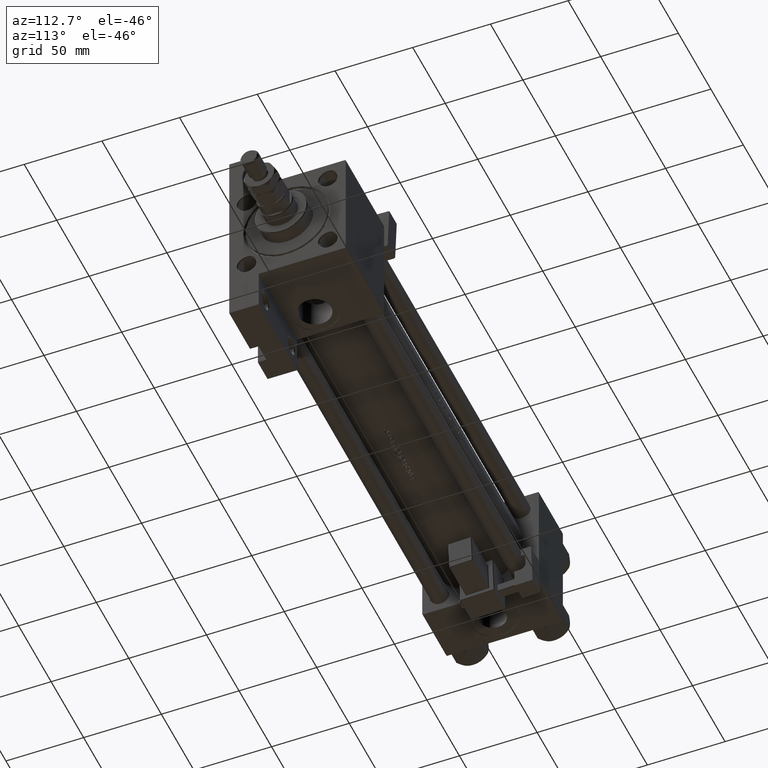
[diagram: clean part render]
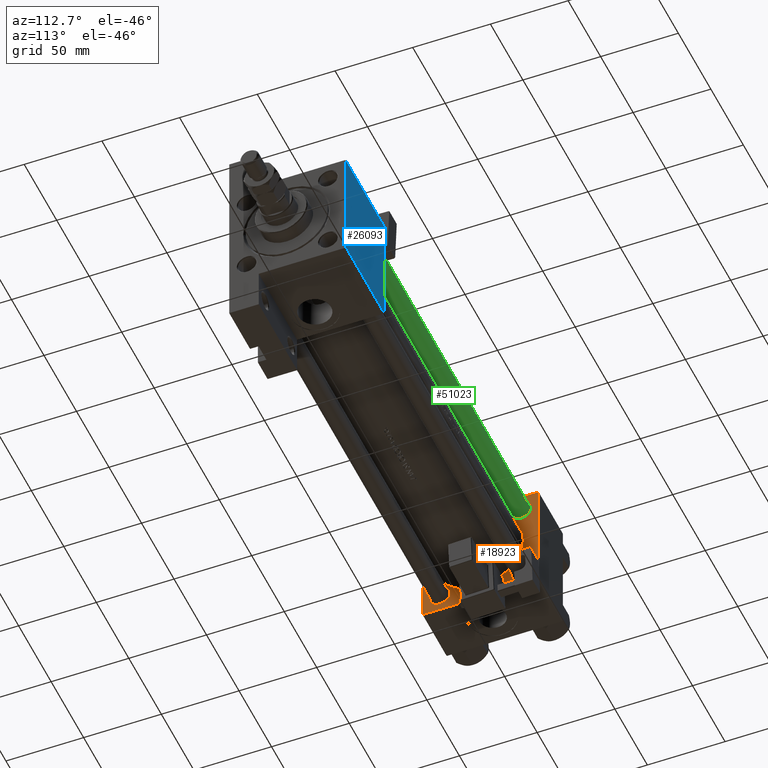
[diagram: same view with three faces highlighted in distinct colors, each labeled with its STEP entity id]
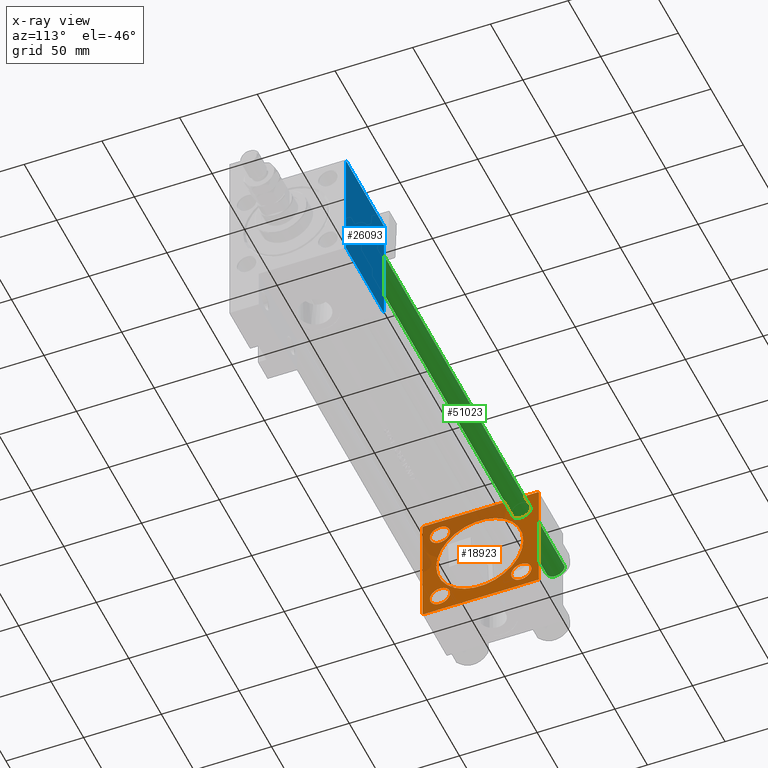
[diagram: x-ray of the same camera — body ghosted, the three highlighted faces saturated]
A machine part, auxiliary view with three faces highlighted in distinct colors.
The next image is the same camera in x-ray (body ghosted, the three faces saturated) — at least one of them is partly hidden behind the body in this view.
Their STEP definitions:

[orange] entity #18923 — the highlighted planar face has unit normal (-1, 0, -0).
#39 = CARTESIAN_POINT ( 'NONE',  ( 37.00000000000000711, 6.123233995736772199E-17, -0.5000000000000004441 ) ) ;
#333 = VERTEX_POINT ( 'NONE', #7022 ) ;
#899 = ORIENTED_EDGE ( 'NONE', *, *, #29052, .T. ) ;
#1171 = EDGE_CURVE ( 'NONE', #26563, #38338, #3139, .T. ) ;
#1453 = VERTEX_POINT ( 'NONE', #18425 ) ;
#2120 = CIRCLE ( 'NONE', #9616, 6.500000000000002665 ) ;
#2301 = DIRECTION ( 'NONE',  ( 0.000000000000000000, -1.000000000000000000, -9.251858538542971581E-17 ) ) ;
#3049 = FACE_BOUND ( 'NONE', #30886, .T. ) ;
#3139 = LINE ( 'NONE', #6781, #6244 ) ;
#3542 = ORIENTED_EDGE ( 'NONE', *, *, #24766, .T. ) ;
#3574 = CARTESIAN_POINT ( 'NONE',  ( 37.00000000000000000, -37.50000000000000000, -37.00000000000003553 ) ) ;
#3919 = VERTEX_POINT ( 'NONE', #23829 ) ;
#4869 = DIRECTION ( 'NONE',  ( 0.000000000000000000, 0.000000000000000000, 1.000000000000000000 ) ) ;
#5374 = CARTESIAN_POINT ( 'NONE',  ( 37.00000000000000000, -26.14999999999999147, -26.15000000000000924 ) ) ;
#5993 = EDGE_CURVE ( 'NONE', #50943, #28813, #36155, .T. ) ;
#6076 = LINE ( 'NONE', #18513, #31182 ) ;
#6078 = VECTOR ( 'NONE', #16163, 1000.000000000000000 ) ;
#6244 = VECTOR ( 'NONE', #43394, 1000.000000000000114 ) ;
#6781 = CARTESIAN_POINT ( 'NONE',  ( 37.00000000000000000, -37.50000000000000711, 36.99999999999999289 ) ) ;
#6968 = VERTEX_POINT ( 'NONE', #14619 ) ;
#7022 = CARTESIAN_POINT ( 'NONE',  ( 37.00000000000000000, -26.14999999999999147, 32.64999999999996305 ) ) ;
#7024 = ORIENTED_EDGE ( 'NONE', *, *, #30095, .T. ) ;
#7077 = ORIENTED_EDGE ( 'NONE', *, *, #5993, .T. ) ;
#7383 = CARTESIAN_POINT ( 'NONE',  ( 37.00000000000000000, -37.00000000000002132, -37.50000000000000711 ) ) ;
#7732 = CARTESIAN_POINT ( 'NONE',  ( 37.00000000000000000, -26.14999999999999147, -26.15000000000000924 ) ) ;
#8100 = DIRECTION ( 'NONE',  ( 0.000000000000000000, 0.000000000000000000, 1.000000000000000000 ) ) ;
#8101 = EDGE_CURVE ( 'NONE', #26979, #1453, #21442, .T. ) ;
#8411 = ORIENTED_EDGE ( 'NONE', *, *, #49796, .T. ) ;
#9340 = CARTESIAN_POINT ( 'NONE',  ( 37.00000000000000000, -37.50000000000000711, 36.99999999999999289 ) ) ;
#9510 = EDGE_CURVE ( 'NONE', #26969, #34592, #29667, .T. ) ;
#9584 = DIRECTION ( 'NONE',  ( -1.000000000000000000, 0.000000000000000000, -0.000000000000000000 ) ) ;
#9616 = AXIS2_PLACEMENT_3D ( 'NONE', #41017, #9584, #37646 ) ;
#9723 = EDGE_LOOP ( 'NONE', ( #7077, #18833 ) ) ;
#9776 = ORIENTED_EDGE ( 'NONE', *, *, #19460, .T. ) ;
#9839 = CIRCLE ( 'NONE', #33896, 6.499999999999953815 ) ;
#9944 = CIRCLE ( 'NONE', #50580, 28.00000000000000000 ) ;
#10334 = FACE_BOUND ( 'NONE', #9723, .T. ) ;
#10570 = CARTESIAN_POINT ( 'NONE',  ( 37.00000000000000000, -37.00000000000000711, 37.49999999999999289 ) ) ;
#10588 = FACE_OUTER_BOUND ( 'NONE', #16124, .T. ) ;
#11095 = DIRECTION ( 'NONE',  ( -1.000000000000000000, 0.000000000000000000, -0.000000000000000000 ) ) ;
#11825 = EDGE_CURVE ( 'NONE', #333, #41876, #45661, .T. ) ;
#12238 = EDGE_LOOP ( 'NONE', ( #50791, #36782 ) ) ;
#12523 = CARTESIAN_POINT ( 'NONE',  ( 37.00000000000000000, 37.49999999999999289, 37.50000000000000000 ) ) ;
#13206 = VERTEX_POINT ( 'NONE', #50297 ) ;
#13342 = CARTESIAN_POINT ( 'NONE',  ( 37.00000000000000000, -26.14999999999999147, 26.15000000000000924 ) ) ;
#13420 = DIRECTION ( 'NONE',  ( -1.000000000000000000, 0.000000000000000000, -0.000000000000000000 ) ) ;
#13660 = DIRECTION ( 'NONE',  ( 0.000000000000000000, 0.000000000000000000, 1.000000000000000000 ) ) ;
#14619 = CARTESIAN_POINT ( 'NONE',  ( 37.00000000000000000, 36.99999999999999289, 37.50000000000000000 ) ) ;
#14737 = CARTESIAN_POINT ( 'NONE',  ( 37.00000000000000000, 0.000000000000000000, 0.000000000000000000 ) ) ;
#14906 = DIRECTION ( 'NONE',  ( 0.000000000000000000, 0.000000000000000000, 1.000000000000000000 ) ) ;
#14932 = AXIS2_PLACEMENT_3D ( 'NONE', #13342, #21399, #37249 ) ;
#15000 = FACE_BOUND ( 'NONE', #12238, .T. ) ;
#15495 = ORIENTED_EDGE ( 'NONE', *, *, #9510, .T. ) ;
#15506 = VECTOR ( 'NONE', #29500, 1000.000000000000114 ) ;
#15634 = VERTEX_POINT ( 'NONE', #32515 ) ;
#15698 = LINE ( 'NONE', #7383, #25706 ) ;
#15798 = ORIENTED_EDGE ( 'NONE', *, *, #8101, .F. ) ;
#16124 = EDGE_LOOP ( 'NONE', ( #15798, #44508, #45728, #9776, #3542, #36397, #8411, #31282 ) ) ;
#16163 = DIRECTION ( 'NONE',  ( 0.000000000000000000, 0.000000000000000000, -1.000000000000000000 ) ) ;
#16478 = VECTOR ( 'NONE', #2301, 1000.000000000000000 ) ;
#16980 = VERTEX_POINT ( 'NONE', #27920 ) ;
#17036 = LINE ( 'NONE', #37038, #15506 ) ;
#17314 = CARTESIAN_POINT ( 'NONE',  ( 37.00000000000000711, 6.123233995736772199E-17, -0.5000000000000004441 ) ) ;
#18425 = CARTESIAN_POINT ( 'NONE',  ( 37.00000000000000000, -37.00000000000002132, -37.50000000000000711 ) ) ;
#18513 = CARTESIAN_POINT ( 'NONE',  ( 37.00000000000000000, 36.99999999999999289, 37.50000000000000000 ) ) ;
#18768 = DIRECTION ( 'NONE',  ( 0.000000000000000000, -0.7071067811865474617, 0.7071067811865474617 ) ) ;
#18811 = EDGE_CURVE ( 'NONE', #28813, #50943, #2120, .T. ) ;
#18833 = ORIENTED_EDGE ( 'NONE', *, *, #18811, .T. ) ;
#18923 = ADVANCED_FACE ( 'NONE', ( #30099, #10334, #3049, #26179, #15000, #10588 ), #34487, .F. ) ;
#19067 = DIRECTION ( 'NONE',  ( 0.000000000000000000, 0.7071067811865524577, -0.7071067811865426878 ) ) ;
#19460 = EDGE_CURVE ( 'NONE', #13206, #6968, #6076, .T. ) ;
#19509 = AXIS2_PLACEMENT_3D ( 'NONE', #48994, #33638, #41191 ) ;
#20018 = CIRCLE ( 'NONE', #49918, 6.500000000000002665 ) ;
#20561 = VERTEX_POINT ( 'NONE', #24661 ) ;
#21024 = LINE ( 'NONE', #49337, #16478 ) ;
#21399 = DIRECTION ( 'NONE',  ( -1.000000000000000000, 0.000000000000000000, -0.000000000000000000 ) ) ;
#21442 = LINE ( 'NONE', #36781, #45347 ) ;
#22137 = CARTESIAN_POINT ( 'NONE',  ( 37.00000000000000000, 26.14999999999999858, 26.15000000000000213 ) ) ;
#22892 = DIRECTION ( 'NONE',  ( -1.000000000000000000, 0.000000000000000000, -0.000000000000000000 ) ) ;
#22944 = VERTEX_POINT ( 'NONE', #3574 ) ;
#23805 = CARTESIAN_POINT ( 'NONE',  ( 37.00000000000000000, -26.14999999999999147, 19.65000000000005542 ) ) ;
#23829 = CARTESIAN_POINT ( 'NONE',  ( 37.00000000000000711, 3.490243377569956456E-15, -28.50000000000000000 ) ) ;
#24635 = EDGE_CURVE ( 'NONE', #41876, #333, #9839, .T. ) ;
#24661 = CARTESIAN_POINT ( 'NONE',  ( 37.00000000000000000, -26.14999999999999147, -19.65000000000006253 ) ) ;
#24766 = EDGE_CURVE ( 'NONE', #6968, #26563, #21024, .T. ) ;
#24896 = AXIS2_PLACEMENT_3D ( 'NONE', #17314, #29785, #13660 ) ;
#24972 = CIRCLE ( 'NONE', #45700, 6.499999999999946709 ) ;
#25295 = EDGE_LOOP ( 'NONE', ( #48843, #15495 ) ) ;
#25706 = VECTOR ( 'NONE', #19067, 1000.000000000000000 ) ;
#26179 = FACE_BOUND ( 'NONE', #25295, .T. ) ;
#26563 = VERTEX_POINT ( 'NONE', #10570 ) ;
#26969 = VERTEX_POINT ( 'NONE', #42454 ) ;
#26979 = VERTEX_POINT ( 'NONE', #27646 ) ;
#27025 = EDGE_CURVE ( 'NONE', #22944, #1453, #15698, .T. ) ;
#27212 = DIRECTION ( 'NONE',  ( -0.000000000000000000, 0.000000000000000000, 1.000000000000000000 ) ) ;
#27370 = EDGE_CURVE ( 'NONE', #15634, #3919, #9944, .T. ) ;
#27646 = CARTESIAN_POINT ( 'NONE',  ( 37.00000000000000000, 36.99999999999997868, -37.50000000000000000 ) ) ;
#27920 = CARTESIAN_POINT ( 'NONE',  ( 37.00000000000000000, -26.14999999999999147, -32.64999999999995595 ) ) ;
#28057 = DIRECTION ( 'NONE',  ( -1.000000000000000000, 0.000000000000000000, -0.000000000000000000 ) ) ;
#28519 = DIRECTION ( 'NONE',  ( 0.000000000000000000, 0.000000000000000000, 1.000000000000000000 ) ) ;
#28813 = VERTEX_POINT ( 'NONE', #48001 ) ;
#29052 = EDGE_CURVE ( 'NONE', #20561, #16980, #24972, .T. ) ;
#29053 = VECTOR ( 'NONE', #45930, 1000.000000000000000 ) ;
#29500 = DIRECTION ( 'NONE',  ( -0.000000000000000000, 0.7071067811865474617, 0.7071067811865474617 ) ) ;
#29536 = CARTESIAN_POINT ( 'NONE',  ( 37.00000000000000000, 26.14999999999999858, 19.64999999999999858 ) ) ;
#29667 = CIRCLE ( 'NONE', #47909, 6.500000000000002665 ) ;
#29785 = DIRECTION ( 'NONE',  ( 1.000000000000000000, -0.000000000000000000, 0.000000000000000000 ) ) ;
#30010 = CARTESIAN_POINT ( 'NONE',  ( 37.00000000000000000, 26.14999999999999858, 26.15000000000000213 ) ) ;
#30095 = EDGE_CURVE ( 'NONE', #16980, #20561, #43110, .T. ) ;
#30099 = FACE_BOUND ( 'NONE', #49663, .T. ) ;
#30314 = ORIENTED_EDGE ( 'NONE', *, *, #11825, .T. ) ;
#30886 = EDGE_LOOP ( 'NONE', ( #38659, #30314 ) ) ;
#31182 = VECTOR ( 'NONE', #18768, 1000.000000000000114 ) ;
#31282 = ORIENTED_EDGE ( 'NONE', *, *, #27025, .T. ) ;
#32456 = AXIS2_PLACEMENT_3D ( 'NONE', #7732, #36318, #28519 ) ;
#32515 = CARTESIAN_POINT ( 'NONE',  ( 37.00000000000000711, 6.123233995736772199E-17, 27.50000000000000000 ) ) ;
#32781 = LINE ( 'NONE', #12523, #6078 ) ;
#32988 = CARTESIAN_POINT ( 'NONE',  ( 37.00000000000000000, 37.49999999999999289, -36.99999999999998579 ) ) ;
#33638 = DIRECTION ( 'NONE',  ( -1.000000000000000000, 0.000000000000000000, -0.000000000000000000 ) ) ;
#33896 = AXIS2_PLACEMENT_3D ( 'NONE', #40514, #28057, #47802 ) ;
#34461 = EDGE_CURVE ( 'NONE', #34592, #26969, #20018, .T. ) ;
#34487 = PLANE ( 'NONE',  #35343 ) ;
#34592 = VERTEX_POINT ( 'NONE', #29536 ) ;
#34740 = LINE ( 'NONE', #50589, #29053 ) ;
#35343 = AXIS2_PLACEMENT_3D ( 'NONE', #14737, #11095, #27212 ) ;
#36108 = CARTESIAN_POINT ( 'NONE',  ( 37.00000000000000000, 26.14999999999999858, -32.65000000000000568 ) ) ;
#36155 = CIRCLE ( 'NONE', #19509, 6.500000000000002665 ) ;
#36318 = DIRECTION ( 'NONE',  ( -1.000000000000000000, 0.000000000000000000, -0.000000000000000000 ) ) ;
#36397 = ORIENTED_EDGE ( 'NONE', *, *, #1171, .T. ) ;
#36781 = CARTESIAN_POINT ( 'NONE',  ( 37.00000000000000000, 37.49999999999999289, -37.50000000000000000 ) ) ;
#36782 = ORIENTED_EDGE ( 'NONE', *, *, #50039, .F. ) ;
#37038 = CARTESIAN_POINT ( 'NONE',  ( 37.00000000000000000, 37.49999999999999289, -36.99999999999998579 ) ) ;
#37249 = DIRECTION ( 'NONE',  ( 0.000000000000000000, 0.000000000000000000, 1.000000000000000000 ) ) ;
#37646 = DIRECTION ( 'NONE',  ( 0.000000000000000000, 0.000000000000000000, 1.000000000000000000 ) ) ;
#37991 = DIRECTION ( 'NONE',  ( 0.000000000000000000, 0.000000000000000000, 1.000000000000000000 ) ) ;
#38069 = EDGE_CURVE ( 'NONE', #13206, #39426, #32781, .T. ) ;
#38338 = VERTEX_POINT ( 'NONE', #9340 ) ;
#38659 = ORIENTED_EDGE ( 'NONE', *, *, #24635, .T. ) ;
#39426 = VERTEX_POINT ( 'NONE', #32988 ) ;
#40514 = CARTESIAN_POINT ( 'NONE',  ( 37.00000000000000000, -26.14999999999999147, 26.15000000000000924 ) ) ;
#40761 = EDGE_CURVE ( 'NONE', #26979, #39426, #17036, .T. ) ;
#41017 = CARTESIAN_POINT ( 'NONE',  ( 37.00000000000000000, 26.14999999999999858, -26.15000000000000213 ) ) ;
#41191 = DIRECTION ( 'NONE',  ( 0.000000000000000000, 0.000000000000000000, 1.000000000000000000 ) ) ;
#41876 = VERTEX_POINT ( 'NONE', #23805 ) ;
#42189 = DIRECTION ( 'NONE',  ( -1.000000000000000000, 0.000000000000000000, -0.000000000000000000 ) ) ;
#42454 = CARTESIAN_POINT ( 'NONE',  ( 37.00000000000000000, 26.14999999999999858, 32.65000000000001279 ) ) ;
#43110 = CIRCLE ( 'NONE', #32456, 6.499999999999946709 ) ;
#43394 = DIRECTION ( 'NONE',  ( -0.000000000000000000, -0.7071067811865474617, -0.7071067811865474617 ) ) ;
#43681 = DIRECTION ( 'NONE',  ( 1.000000000000000000, -0.000000000000000000, 0.000000000000000000 ) ) ;
#44508 = ORIENTED_EDGE ( 'NONE', *, *, #40761, .T. ) ;
#45347 = VECTOR ( 'NONE', #50170, 1000.000000000000000 ) ;
#45661 = CIRCLE ( 'NONE', #14932, 6.499999999999953815 ) ;
#45700 = AXIS2_PLACEMENT_3D ( 'NONE', #5374, #13420, #4869 ) ;
#45728 = ORIENTED_EDGE ( 'NONE', *, *, #38069, .F. ) ;
#45930 = DIRECTION ( 'NONE',  ( 0.000000000000000000, 9.251858538542971581E-17, -1.000000000000000000 ) ) ;
#47802 = DIRECTION ( 'NONE',  ( 0.000000000000000000, 0.000000000000000000, 1.000000000000000000 ) ) ;
#47909 = AXIS2_PLACEMENT_3D ( 'NONE', #22137, #22892, #37991 ) ;
#48001 = CARTESIAN_POINT ( 'NONE',  ( 37.00000000000000000, 26.14999999999999858, -19.65000000000000213 ) ) ;
#48843 = ORIENTED_EDGE ( 'NONE', *, *, #34461, .T. ) ;
#48966 = CIRCLE ( 'NONE', #24896, 28.00000000000000000 ) ;
#48994 = CARTESIAN_POINT ( 'NONE',  ( 37.00000000000000000, 26.14999999999999858, -26.15000000000000213 ) ) ;
#49337 = CARTESIAN_POINT ( 'NONE',  ( 37.00000000000000000, 37.49999999999999289, 37.50000000000000000 ) ) ;
#49663 = EDGE_LOOP ( 'NONE', ( #7024, #899 ) ) ;
#49796 = EDGE_CURVE ( 'NONE', #38338, #22944, #34740, .T. ) ;
#49918 = AXIS2_PLACEMENT_3D ( 'NONE', #30010, #42189, #14906 ) ;
#50039 = EDGE_CURVE ( 'NONE', #3919, #15634, #48966, .T. ) ;
#50170 = DIRECTION ( 'NONE',  ( 0.000000000000000000, -1.000000000000000000, -9.251858538542972814E-17 ) ) ;
#50297 = CARTESIAN_POINT ( 'NONE',  ( 37.00000000000000000, 37.49999999999999289, 37.00000000000000000 ) ) ;
#50580 = AXIS2_PLACEMENT_3D ( 'NONE', #39, #43681, #8100 ) ;
#50589 = CARTESIAN_POINT ( 'NONE',  ( 37.00000000000000000, -37.50000000000000711, 37.49999999999999289 ) ) ;
#50791 = ORIENTED_EDGE ( 'NONE', *, *, #27370, .F. ) ;
#50943 = VERTEX_POINT ( 'NONE', #36108 ) ;

[blue] entity #26093 — the highlighted planar face has unit normal (0, -1, -0).
#114 = CARTESIAN_POINT ( 'NONE',  ( 333.9999999999999432, 37.50000000000000000, 37.49999999999999289 ) ) ;
#507 = CARTESIAN_POINT ( 'NONE',  ( 274.9999999999999432, -36.99999999999994316, 37.49999999999997868 ) ) ;
#711 = EDGE_LOOP ( 'NONE', ( #29264, #2496, #40821, #42415 ) ) ;
#788 = LINE ( 'NONE', #17414, #2726 ) ;
#1526 = EDGE_CURVE ( 'NONE', #28589, #19885, #2336, .T. ) ;
#2336 = LINE ( 'NONE', #26220, #9555 ) ;
#2496 = ORIENTED_EDGE ( 'NONE', *, *, #37358, .T. ) ;
#2726 = VECTOR ( 'NONE', #48852, 1000.000000000000000 ) ;
#2752 = CARTESIAN_POINT ( 'NONE',  ( 333.9999999999999432, -36.99999999999994316, 37.49999999999997868 ) ) ;
#3104 = CARTESIAN_POINT ( 'NONE',  ( 333.9999999999999432, 36.99999999999994316, 37.49999999999999289 ) ) ;
#5590 = VECTOR ( 'NONE', #30293, 1000.000000000000000 ) ;
#5736 = DIRECTION ( 'NONE',  ( 0.000000000000000000, -1.000000000000000000, -1.850371707708594316E-16 ) ) ;
#7411 = AXIS2_PLACEMENT_3D ( 'NONE', #49171, #22370, #49414 ) ;
#9555 = VECTOR ( 'NONE', #5736, 1000.000000000000000 ) ;
#10561 = VERTEX_POINT ( 'NONE', #47911 ) ;
#12209 = VECTOR ( 'NONE', #15974, 1000.000000000000000 ) ;
#13815 = FACE_OUTER_BOUND ( 'NONE', #711, .T. ) ;
#15974 = DIRECTION ( 'NONE',  ( 0.000000000000000000, -1.000000000000000000, -1.850371707708594316E-16 ) ) ;
#17414 = CARTESIAN_POINT ( 'NONE',  ( 274.9999999999999432, 36.99999999999994316, 37.49999999999999289 ) ) ;
#19867 = LINE ( 'NONE', #114, #12209 ) ;
#19885 = VERTEX_POINT ( 'NONE', #507 ) ;
#22370 = DIRECTION ( 'NONE',  ( 0.000000000000000000, 1.850371707708594316E-16, -1.000000000000000000 ) ) ;
#25765 = PLANE ( 'NONE',  #7411 ) ;
#26093 = ADVANCED_FACE ( 'NONE', ( #13815 ), #25765, .F. ) ;
#26220 = CARTESIAN_POINT ( 'NONE',  ( 274.9999999999999432, 37.50000000000000000, 37.49999999999999289 ) ) ;
#27584 = VERTEX_POINT ( 'NONE', #3104 ) ;
#28053 = CARTESIAN_POINT ( 'NONE',  ( 274.9999999999999432, 36.99999999999994316, 37.49999999999999289 ) ) ;
#28589 = VERTEX_POINT ( 'NONE', #28053 ) ;
#29264 = ORIENTED_EDGE ( 'NONE', *, *, #40598, .F. ) ;
#30054 = LINE ( 'NONE', #2752, #5590 ) ;
#30293 = DIRECTION ( 'NONE',  ( 1.000000000000000000, 0.000000000000000000, 0.000000000000000000 ) ) ;
#37358 = EDGE_CURVE ( 'NONE', #27584, #28589, #788, .T. ) ;
#39815 = EDGE_CURVE ( 'NONE', #19885, #10561, #30054, .T. ) ;
#40598 = EDGE_CURVE ( 'NONE', #27584, #10561, #19867, .T. ) ;
#40821 = ORIENTED_EDGE ( 'NONE', *, *, #1526, .T. ) ;
#42415 = ORIENTED_EDGE ( 'NONE', *, *, #39815, .T. ) ;
#47911 = CARTESIAN_POINT ( 'NONE',  ( 333.9999999999999432, -36.99999999999994316, 37.49999999999997868 ) ) ;
#48852 = DIRECTION ( 'NONE',  ( -1.000000000000000000, 0.000000000000000000, 0.000000000000000000 ) ) ;
#49171 = CARTESIAN_POINT ( 'NONE',  ( 333.9999999999999432, 37.50000000000000000, 37.49999999999999289 ) ) ;
#49414 = DIRECTION ( 'NONE',  ( 0.000000000000000000, 1.000000000000000000, 1.850371707708594316E-16 ) ) ;

[green] entity #51023 — the highlighted cylindrical surface (edge-blend (fillet) strip) has radius 6 mm, axis along (1, -0, 0).
#893 = AXIS2_PLACEMENT_3D ( 'NONE', #51047, #6380, #6636 ) ;
#2653 = VECTOR ( 'NONE', #49913, 1000.000000000000000 ) ;
#3455 = EDGE_CURVE ( 'NONE', #38522, #49988, #38649, .T. ) ;
#4296 = EDGE_CURVE ( 'NONE', #39826, #19098, #36225, .T. ) ;
#6380 = DIRECTION ( 'NONE',  ( -0.000000000000000000, -0.000000000000000000, -1.000000000000000000 ) ) ;
#6636 = DIRECTION ( 'NONE',  ( -1.000000000000000000, 0.000000000000000000, 0.000000000000000000 ) ) ;
#6871 = ORIENTED_EDGE ( 'NONE', *, *, #3455, .T. ) ;
#7267 = DIRECTION ( 'NONE',  ( 1.000000000000000000, 0.000000000000000000, 0.000000000000000000 ) ) ;
#9192 = ORIENTED_EDGE ( 'NONE', *, *, #35374, .T. ) ;
#11035 = CYLINDRICAL_SURFACE ( 'NONE', #893, 6.000000000000000888 ) ;
#16221 = CARTESIAN_POINT ( 'NONE',  ( 0.000000000000000000, 0.000000000000000000, 0.4999999999999449329 ) ) ;
#19098 = VERTEX_POINT ( 'NONE', #37339 ) ;
#19606 = CARTESIAN_POINT ( 'NONE',  ( -6.000000000000000888, 0.000000000000000000, 303.5000000000000000 ) ) ;
#20641 = DIRECTION ( 'NONE',  ( 1.000000000000000000, 0.000000000000000000, 0.000000000000000000 ) ) ;
#21245 = AXIS2_PLACEMENT_3D ( 'NONE', #51431, #31686, #7267 ) ;
#21372 = EDGE_CURVE ( 'NONE', #38522, #19098, #38013, .T. ) ;
#21675 = ORIENTED_EDGE ( 'NONE', *, *, #4296, .T. ) ;
#24341 = CARTESIAN_POINT ( 'NONE',  ( 6.000000000000000888, 7.347880794884120722E-16, 303.5000000000000000 ) ) ;
#25504 = LINE ( 'NONE', #33548, #2653 ) ;
#26387 = CARTESIAN_POINT ( 'NONE',  ( 6.000000000000000888, 7.347880794884120722E-16, 0.4999999999999449329 ) ) ;
#27069 = DIRECTION ( 'NONE',  ( -0.000000000000000000, -0.000000000000000000, -1.000000000000000000 ) ) ;
#28790 = VECTOR ( 'NONE', #27069, 1000.000000000000000 ) ;
#30796 = FACE_OUTER_BOUND ( 'NONE', #37484, .T. ) ;
#31686 = DIRECTION ( 'NONE',  ( 0.000000000000000000, 0.000000000000000000, -1.000000000000000000 ) ) ;
#33548 = CARTESIAN_POINT ( 'NONE',  ( 6.000000000000000888, 7.347880794884120722E-16, 304.0000000000000000 ) ) ;
#35374 = EDGE_CURVE ( 'NONE', #49988, #39826, #25504, .T. ) ;
#36225 = CIRCLE ( 'NONE', #48682, 6.000000000000000888 ) ;
#37339 = CARTESIAN_POINT ( 'NONE',  ( -6.000000000000000888, 0.000000000000000000, 0.4999999999999449329 ) ) ;
#37484 = EDGE_LOOP ( 'NONE', ( #6871, #9192, #21675, #49191 ) ) ;
#38013 = LINE ( 'NONE', #49960, #28790 ) ;
#38522 = VERTEX_POINT ( 'NONE', #19606 ) ;
#38649 = CIRCLE ( 'NONE', #21245, 6.000000000000000888 ) ;
#39826 = VERTEX_POINT ( 'NONE', #26387 ) ;
#43763 = DIRECTION ( 'NONE',  ( -0.000000000000000000, -0.000000000000000000, 1.000000000000000000 ) ) ;
#48682 = AXIS2_PLACEMENT_3D ( 'NONE', #16221, #43763, #20641 ) ;
#49191 = ORIENTED_EDGE ( 'NONE', *, *, #21372, .F. ) ;
#49913 = DIRECTION ( 'NONE',  ( -0.000000000000000000, -0.000000000000000000, -1.000000000000000000 ) ) ;
#49960 = CARTESIAN_POINT ( 'NONE',  ( -6.000000000000000888, 0.000000000000000000, 304.0000000000000000 ) ) ;
#49988 = VERTEX_POINT ( 'NONE', #24341 ) ;
#51023 = ADVANCED_FACE ( 'NONE', ( #30796 ), #11035, .T. ) ;
#51047 = CARTESIAN_POINT ( 'NONE',  ( 0.000000000000000000, 0.000000000000000000, 304.0000000000000000 ) ) ;
#51431 = CARTESIAN_POINT ( 'NONE',  ( 0.000000000000000000, 0.000000000000000000, 303.5000000000000000 ) ) ;